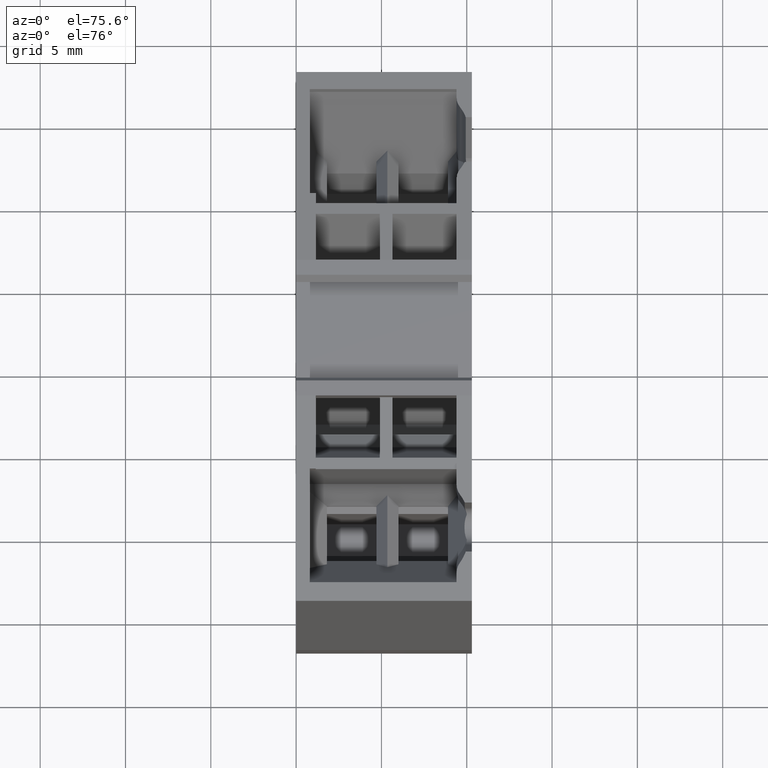
[diagram: clean part render]
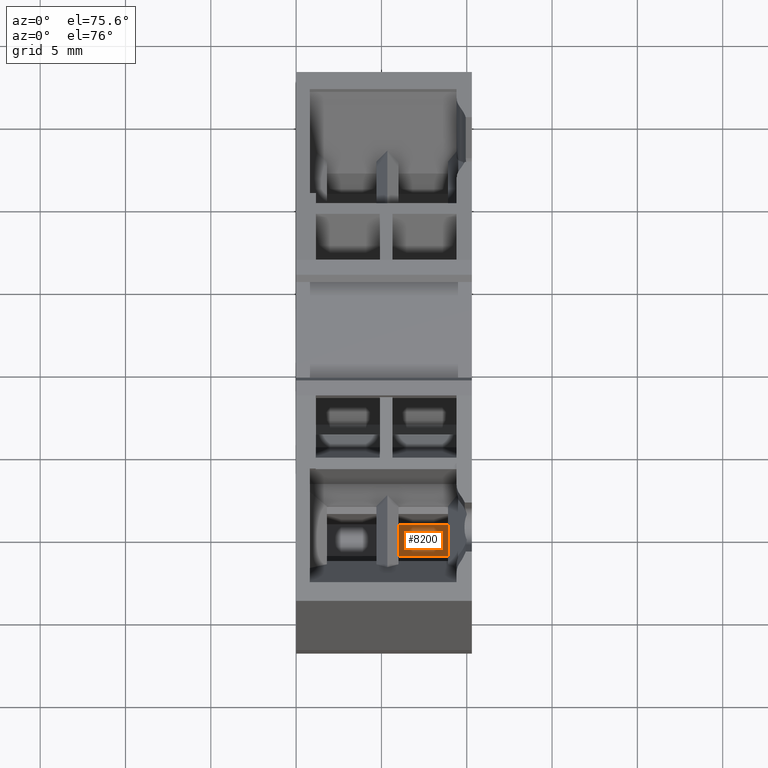
[diagram: same view with one face highlighted and labeled with its STEP entity id]
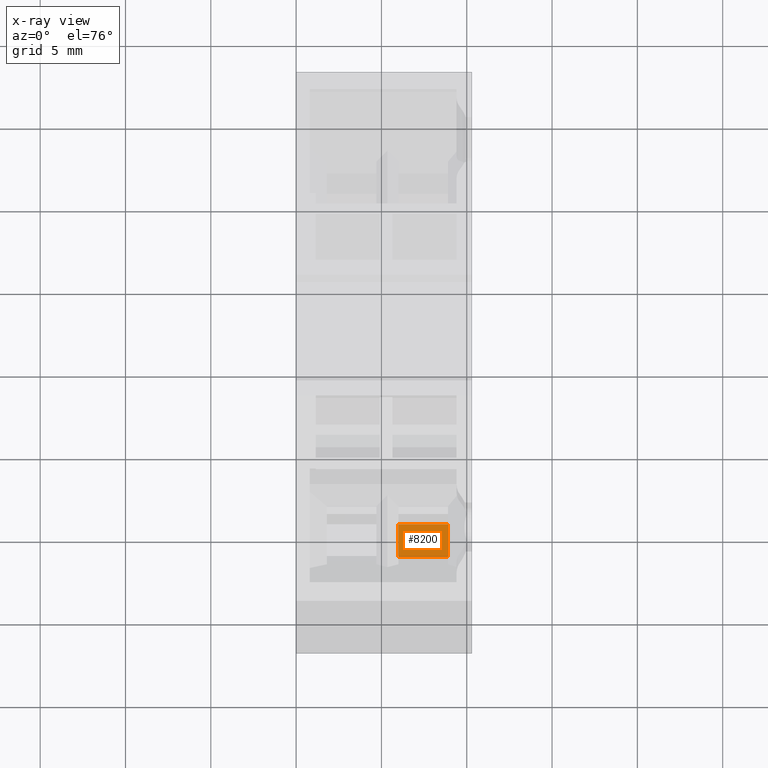
[diagram: x-ray of the same camera — body ghosted, the highlighted face saturated]
A machine part, auxiliary view. The second image highlights one B-rep face of the part: STEP entity #8200.
The next image is the same camera in x-ray: the body ghosted, the highlighted face saturated — about 0% of this face is hidden behind the body in this view.
In plain terms, the highlighted planar face has unit normal (0, -0, -1).
Its self-contained STEP definition (entity closure, byte-faithful):
#7460=CARTESIAN_POINT('',(4.20918241220923,122.357820425342,
59.3499999999997));
#7470=VERTEX_POINT('',#7460);
#7500=CARTESIAN_POINT('',(0.420307883527972,136.498092669875,
59.3499999999996));
#7510=DIRECTION('',(-0.258819045102674,0.965925826289027,
-9.66253579065003E-15));
#7520=VECTOR('',#7510,1.);
#7530=LINE('',#7500,#7520);
#7540=CARTESIAN_POINT('',(3.6914400360969,124.290061278223,
59.3499999999997));
#7550=VERTEX_POINT('',#7540);
#7560=EDGE_CURVE('',#7470,#7550,#7530,.T.);
#7900=CARTESIAN_POINT('',(8.70346406543198,105.584932952001,
55.0499999999999));
#7910=DIRECTION('',(0.965925826289027,0.258819045102674,
1.23259516440783E-32));
#7920=DIRECTION('',(-0.258819045102674,0.965925826289027,
7.1871935364525E-65));
#7930=AXIS2_PLACEMENT_3D('',#7900,#7910,#7920);
#7940=PLANE('',#7930);
#7950=CARTESIAN_POINT('',(4.20918241220925,122.357820425342,
55.0499999999999));
#7960=DIRECTION('',(2.57735550933659E-15,-9.61882171000559E-15,-1.));
#7970=VECTOR('',#7960,1.);
#7980=LINE('',#7950,#7970);
#7990=CARTESIAN_POINT('',(4.20918241220923,122.357820425342,
56.4499999999997));
#8000=VERTEX_POINT('',#7990);
#8010=EDGE_CURVE('',#7470,#8000,#7980,.T.);
#8020=ORIENTED_EDGE('',*,*,#8010,.F.);
#8030=CARTESIAN_POINT('',(0.420307883527972,136.498092669875,
56.4499999999995));
#8040=DIRECTION('',(0.258819045102674,-0.965925826289027,
9.64886883762224E-15));
#8050=VECTOR('',#8040,1.);
#8060=LINE('',#8030,#8050);
#8070=CARTESIAN_POINT('',(3.6914400360969,124.290061278223,
56.4499999999996));
#8080=VERTEX_POINT('',#8070);
#8090=EDGE_CURVE('',#8080,#8000,#8060,.T.);
#8100=ORIENTED_EDGE('',*,*,#8090,.T.);
#8110=CARTESIAN_POINT('',(3.69144003609691,124.290061278223,
55.0499999999999));
#8120=DIRECTION('',(-2.57735550933666E-15,9.61882171000588E-15,1.));
#8130=VECTOR('',#8120,1.);
#8140=LINE('',#8110,#8130);
#8150=EDGE_CURVE('',#8080,#7550,#8140,.T.);
#8160=ORIENTED_EDGE('',*,*,#8150,.F.);
#8170=ORIENTED_EDGE('',*,*,#7560,.T.);
#8180=EDGE_LOOP('',(#8170,#8160,#8100,#8020));
#8190=FACE_OUTER_BOUND('',#8180,.T.);
#8200=ADVANCED_FACE('',(#8190),#7940,.F.);